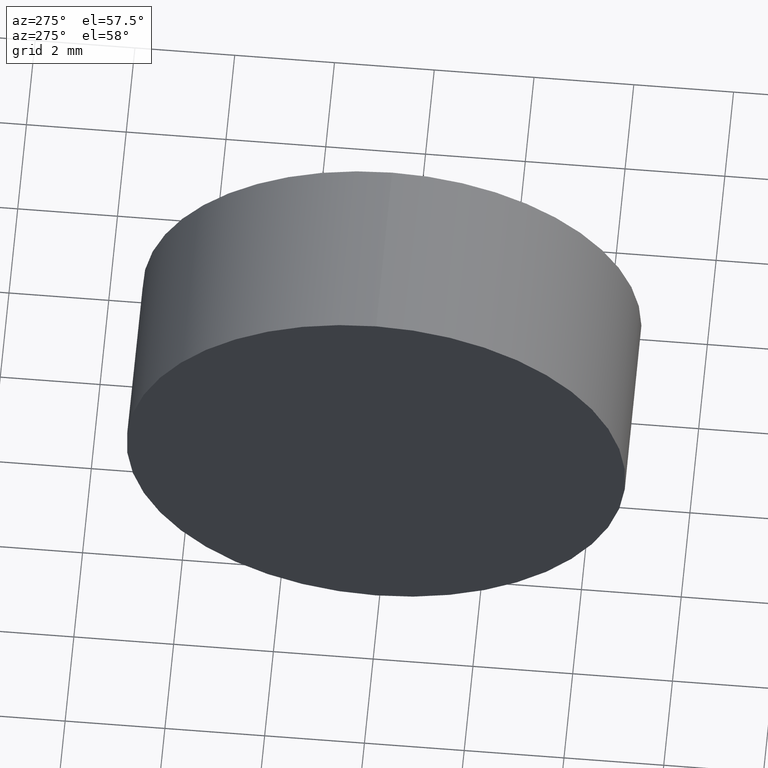
[diagram: clean part render]
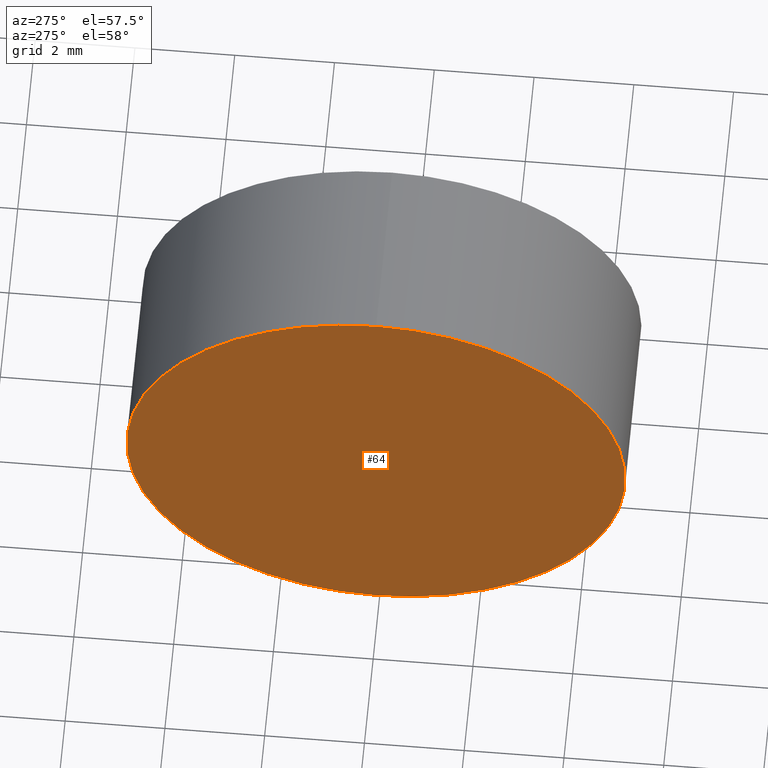
[diagram: same view with one face highlighted and labeled with its STEP entity id]
A machine part, auxiliary view. The second image highlights one B-rep face of the part: STEP entity #64.
In plain terms, the highlighted planar face has unit normal (1, 0, 0).
Its self-contained STEP definition (entity closure, byte-faithful):
#6 = CARTESIAN_POINT ( 'NONE',  ( 41.36582732549757700, 26.06225218280608000, -4.999999999999997300 ) ) ;
#16 = ORIENTED_EDGE ( 'NONE', *, *, #89, .T. ) ;
#20 = DIRECTION ( 'NONE',  ( 0.0000000000000000000, 0.0000000000000000000, 1.000000000000000000 ) ) ;
#21 = DIRECTION ( 'NONE',  ( 0.0000000000000000000, 0.0000000000000000000, 1.000000000000000000 ) ) ;
#32 = DIRECTION ( 'NONE',  ( -1.000000000000000000, -0.0000000000000000000, -0.0000000000000000000 ) ) ;
#33 = AXIS2_PLACEMENT_3D ( 'NONE', #124, #121, #20 ) ;
#49 = DIRECTION ( 'NONE',  ( 0.0000000000000000000, 0.0000000000000000000, -1.000000000000000000 ) ) ;
#58 = PLANE ( 'NONE',  #148 ) ;
#64 = ADVANCED_FACE ( 'NONE', ( #130 ), #58, .F. ) ;
#85 = EDGE_LOOP ( 'NONE', ( #16, #96 ) ) ;
#88 = VERTEX_POINT ( 'NONE', #173 ) ;
#89 = EDGE_CURVE ( 'NONE', #88, #136, #164, .T. ) ;
#96 = ORIENTED_EDGE ( 'NONE', *, *, #110, .T. ) ;
#106 = CARTESIAN_POINT ( 'NONE',  ( 41.36582732549757700, 26.06225218280608000, 0.0000000000000000000 ) ) ;
#110 = EDGE_CURVE ( 'NONE', #136, #88, #184, .T. ) ;
#121 = DIRECTION ( 'NONE',  ( -1.000000000000000000, -0.0000000000000000000, -0.0000000000000000000 ) ) ;
#124 = CARTESIAN_POINT ( 'NONE',  ( 41.36582732549757700, 26.06225218280608000, 0.0000000000000000000 ) ) ;
#130 = FACE_OUTER_BOUND ( 'NONE', #85, .T. ) ;
#136 = VERTEX_POINT ( 'NONE', #6 ) ;
#139 = CARTESIAN_POINT ( 'NONE',  ( 41.36582732549757700, 26.06225218280608000, 0.0000000000000000000 ) ) ;
#148 = AXIS2_PLACEMENT_3D ( 'NONE', #139, #154, #49 ) ;
#154 = DIRECTION ( 'NONE',  ( 1.000000000000000000, 0.0000000000000000000, 0.0000000000000000000 ) ) ;
#157 = AXIS2_PLACEMENT_3D ( 'NONE', #106, #32, #21 ) ;
#164 = CIRCLE ( 'NONE', #157, 4.999999999999997300 ) ;
#173 = CARTESIAN_POINT ( 'NONE',  ( 41.36582732549757700, 26.06225218280608000, 4.999999999999997300 ) ) ;
#184 = CIRCLE ( 'NONE', #33, 4.999999999999997300 ) ;